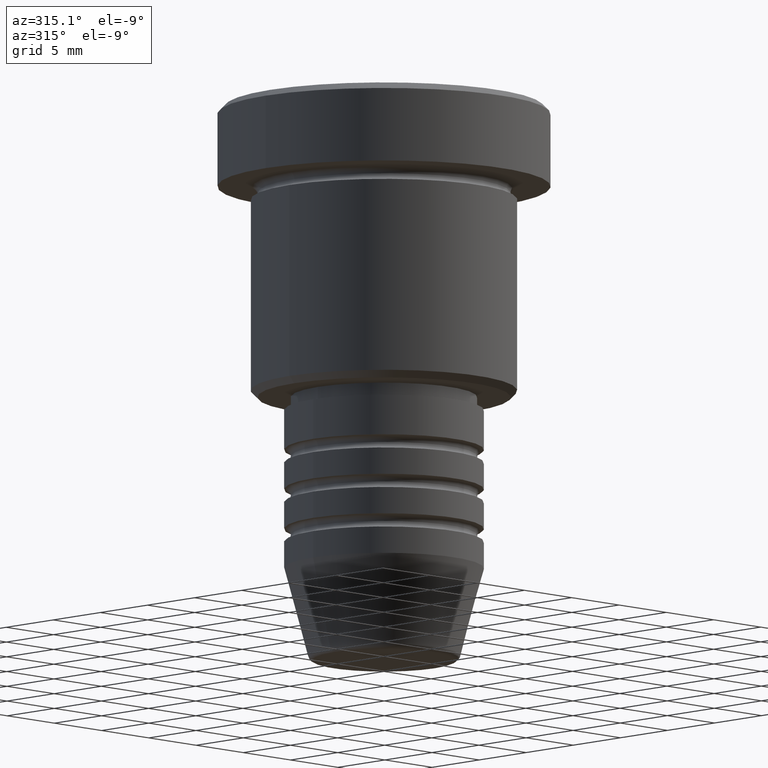
[diagram: clean part render]
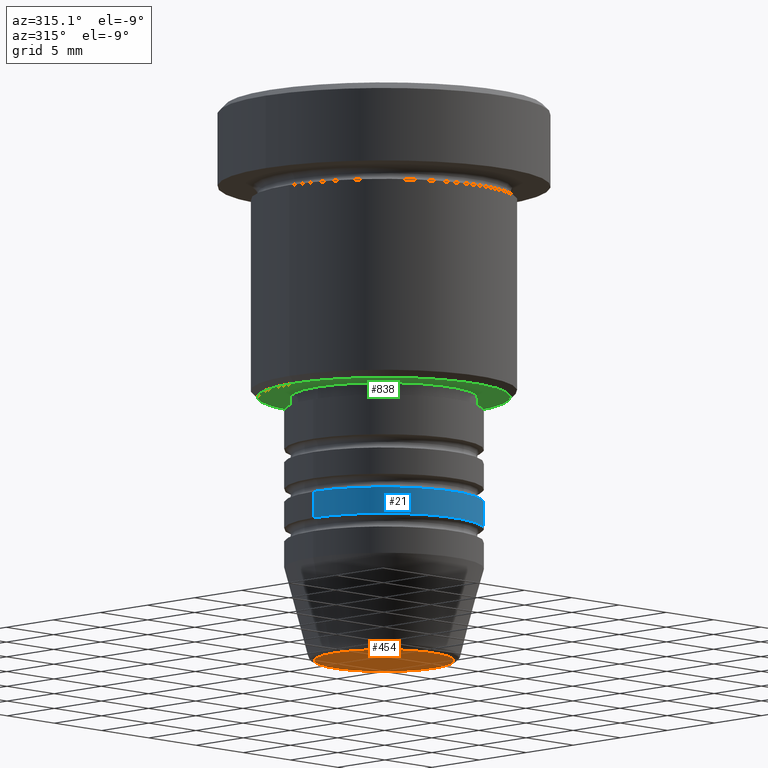
[diagram: same view with three faces highlighted in distinct colors, each labeled with its STEP entity id]
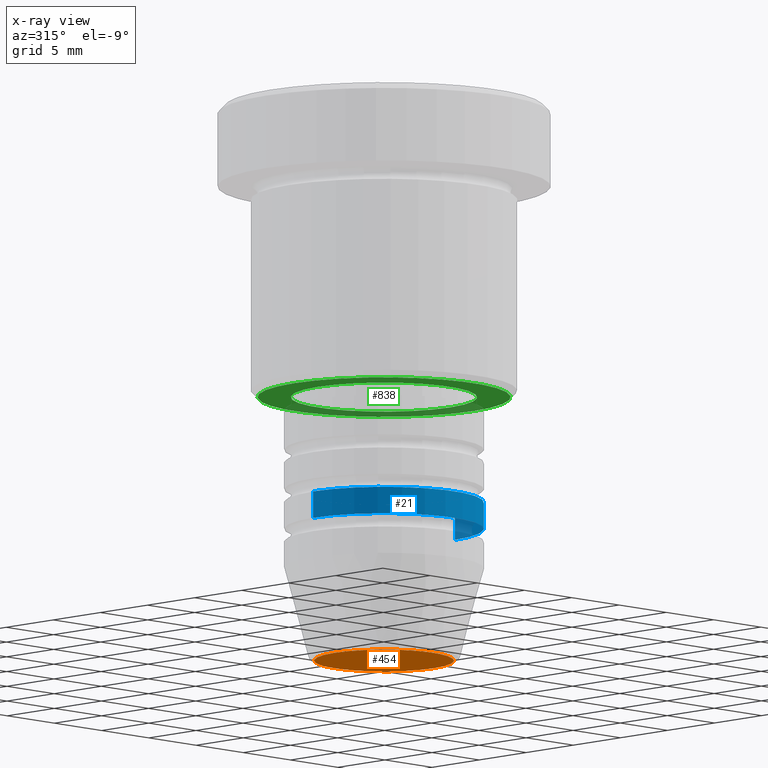
[diagram: x-ray of the same camera — body ghosted, the three highlighted faces saturated]
A machine part, auxiliary view with three faces highlighted in distinct colors.
The next image is the same camera in x-ray (body ghosted, the three faces saturated) — at least one of them is partly hidden behind the body in this view.
Their STEP definitions:

[orange] entity #454 — the highlighted planar face has unit normal (0, -0, 1).
#114 = AXIS2_PLACEMENT_3D ( 'NONE', #643, #422, #159 ) ;
#159 = DIRECTION ( 'NONE',  ( 1.000000000000000000, 0.000000000000000000, 0.000000000000000000 ) ) ;
#185 = CARTESIAN_POINT ( 'NONE',  ( 0.000000000000000000, 0.000000000000000000, -41.99999999999999289 ) ) ;
#422 = DIRECTION ( 'NONE',  ( 0.000000000000000000, 0.000000000000000000, -1.000000000000000000 ) ) ;
#454 = ADVANCED_FACE ( 'NONE', ( #817 ), #715, .F. ) ;
#494 = CIRCLE ( 'NONE', #531, 5.240692158992656502 ) ;
#498 = DIRECTION ( 'NONE',  ( 1.000000000000000000, 0.000000000000000000, 0.000000000000000000 ) ) ;
#531 = AXIS2_PLACEMENT_3D ( 'NONE', #1077, #603, #498 ) ;
#586 = CARTESIAN_POINT ( 'NONE',  ( 5.240692158992656502, 0.000000000000000000, -41.99999999999999289 ) ) ;
#595 = CIRCLE ( 'NONE', #114, 5.240692158992656502 ) ;
#597 = EDGE_CURVE ( 'NONE', #874, #901, #494, .T. ) ;
#603 = DIRECTION ( 'NONE',  ( 0.000000000000000000, 0.000000000000000000, -1.000000000000000000 ) ) ;
#643 = CARTESIAN_POINT ( 'NONE',  ( 0.000000000000000000, 0.000000000000000000, -41.99999999999999289 ) ) ;
#654 = CARTESIAN_POINT ( 'NONE',  ( -5.240692158992656502, 6.713726370671657473E-16, -41.99999999999999289 ) ) ;
#702 = AXIS2_PLACEMENT_3D ( 'NONE', #185, #1174, #802 ) ;
#715 = PLANE ( 'NONE',  #702 ) ;
#732 = ORIENTED_EDGE ( 'NONE', *, *, #597, .T. ) ;
#802 = DIRECTION ( 'NONE',  ( 1.000000000000000000, 0.000000000000000000, 0.000000000000000000 ) ) ;
#817 = FACE_OUTER_BOUND ( 'NONE', #1180, .T. ) ;
#874 = VERTEX_POINT ( 'NONE', #586 ) ;
#901 = VERTEX_POINT ( 'NONE', #654 ) ;
#1006 = EDGE_CURVE ( 'NONE', #901, #874, #595, .T. ) ;
#1035 = ORIENTED_EDGE ( 'NONE', *, *, #1006, .T. ) ;
#1077 = CARTESIAN_POINT ( 'NONE',  ( 0.000000000000000000, 0.000000000000000000, -41.99999999999999289 ) ) ;
#1174 = DIRECTION ( 'NONE',  ( 0.000000000000000000, -0.000000000000000000, 1.000000000000000000 ) ) ;
#1180 = EDGE_LOOP ( 'NONE', ( #732, #1035 ) ) ;

[blue] entity #21 — the highlighted cylindrical surface (partial cylindrical patch) has radius 7.5 mm, axis along (-0, -0, 1).
#21 = ADVANCED_FACE ( 'NONE', ( #484 ), #755, .T. ) ;
#43 = LINE ( 'NONE', #48, #240 ) ;
#48 = CARTESIAN_POINT ( 'NONE',  ( -7.500000000000000000, 9.184850993605147944E-16, 0.000000000000000000 ) ) ;
#55 = VERTEX_POINT ( 'NONE', #1010 ) ;
#84 = DIRECTION ( 'NONE',  ( 1.000000000000000000, 0.000000000000000000, 0.000000000000000000 ) ) ;
#131 = CARTESIAN_POINT ( 'NONE',  ( -7.500000000000000000, 9.184850993605147944E-16, -29.99999999999998224 ) ) ;
#207 = CIRCLE ( 'NONE', #653, 7.500000000000000000 ) ;
#236 = AXIS2_PLACEMENT_3D ( 'NONE', #581, #938, #473 ) ;
#240 = VECTOR ( 'NONE', #696, 1000.000000000000000 ) ;
#243 = DIRECTION ( 'NONE',  ( 1.000000000000000000, 0.000000000000000000, 0.000000000000000000 ) ) ;
#294 = CARTESIAN_POINT ( 'NONE',  ( 7.500000000000000000, 0.000000000000000000, -31.99999999999997868 ) ) ;
#384 = ORIENTED_EDGE ( 'NONE', *, *, #602, .T. ) ;
#409 = EDGE_CURVE ( 'NONE', #1135, #747, #850, .T. ) ;
#473 = DIRECTION ( 'NONE',  ( 1.000000000000000000, 0.000000000000000000, 0.000000000000000000 ) ) ;
#484 = FACE_OUTER_BOUND ( 'NONE', #730, .T. ) ;
#512 = VECTOR ( 'NONE', #1137, 1000.000000000000000 ) ;
#518 = DIRECTION ( 'NONE',  ( -0.000000000000000000, -0.000000000000000000, 1.000000000000000000 ) ) ;
#519 = ORIENTED_EDGE ( 'NONE', *, *, #1049, .F. ) ;
#555 = CARTESIAN_POINT ( 'NONE',  ( -7.500000000000000000, 9.184850993605147944E-16, -31.99999999999997868 ) ) ;
#581 = CARTESIAN_POINT ( 'NONE',  ( 0.000000000000000000, 0.000000000000000000, 0.000000000000000000 ) ) ;
#599 = LINE ( 'NONE', #1033, #512 ) ;
#602 = EDGE_CURVE ( 'NONE', #747, #55, #599, .T. ) ;
#624 = VERTEX_POINT ( 'NONE', #131 ) ;
#627 = EDGE_CURVE ( 'NONE', #1135, #624, #43, .T. ) ;
#653 = AXIS2_PLACEMENT_3D ( 'NONE', #1143, #673, #84 ) ;
#673 = DIRECTION ( 'NONE',  ( -0.000000000000000000, -0.000000000000000000, 1.000000000000000000 ) ) ;
#696 = DIRECTION ( 'NONE',  ( -0.000000000000000000, -0.000000000000000000, 1.000000000000000000 ) ) ;
#730 = EDGE_LOOP ( 'NONE', ( #1024, #899, #384, #519 ) ) ;
#747 = VERTEX_POINT ( 'NONE', #294 ) ;
#755 = CYLINDRICAL_SURFACE ( 'NONE', #236, 7.500000000000000000 ) ;
#850 = CIRCLE ( 'NONE', #1168, 7.500000000000000000 ) ;
#899 = ORIENTED_EDGE ( 'NONE', *, *, #409, .T. ) ;
#938 = DIRECTION ( 'NONE',  ( -0.000000000000000000, -0.000000000000000000, 1.000000000000000000 ) ) ;
#1010 = CARTESIAN_POINT ( 'NONE',  ( 7.500000000000000000, 0.000000000000000000, -29.99999999999998224 ) ) ;
#1024 = ORIENTED_EDGE ( 'NONE', *, *, #627, .F. ) ;
#1033 = CARTESIAN_POINT ( 'NONE',  ( 7.500000000000000000, 0.000000000000000000, 0.000000000000000000 ) ) ;
#1049 = EDGE_CURVE ( 'NONE', #624, #55, #207, .T. ) ;
#1053 = CARTESIAN_POINT ( 'NONE',  ( 0.000000000000000000, 0.000000000000000000, -31.99999999999997868 ) ) ;
#1135 = VERTEX_POINT ( 'NONE', #555 ) ;
#1137 = DIRECTION ( 'NONE',  ( -0.000000000000000000, -0.000000000000000000, 1.000000000000000000 ) ) ;
#1143 = CARTESIAN_POINT ( 'NONE',  ( 0.000000000000000000, 0.000000000000000000, -29.99999999999998224 ) ) ;
#1168 = AXIS2_PLACEMENT_3D ( 'NONE', #1053, #518, #243 ) ;

[green] entity #838 — the highlighted planar face has unit normal (0, 0, -1).
#1 = DIRECTION ( 'NONE',  ( -1.000000000000000000, 0.000000000000000000, 0.000000000000000000 ) ) ;
#11 = DIRECTION ( 'NONE',  ( -1.000000000000000000, 0.000000000000000000, 0.000000000000000000 ) ) ;
#56 = CIRCLE ( 'NONE', #356, 9.499999999999991118 ) ;
#61 = CARTESIAN_POINT ( 'NONE',  ( 0.000000000000000000, 0.000000000000000000, -21.99999999999999645 ) ) ;
#69 = CARTESIAN_POINT ( 'NONE',  ( 0.000000000000000000, 10.00000000000000000, -21.99999999999999645 ) ) ;
#79 = EDGE_CURVE ( 'NONE', #706, #276, #56, .T. ) ;
#91 = EDGE_CURVE ( 'NONE', #276, #706, #1016, .T. ) ;
#94 = ORIENTED_EDGE ( 'NONE', *, *, #847, .T. ) ;
#156 = CARTESIAN_POINT ( 'NONE',  ( 6.999999999999999112, 0.000000000000000000, -21.99999999999999645 ) ) ;
#186 = DIRECTION ( 'NONE',  ( -1.000000000000000000, 0.000000000000000000, -0.000000000000000000 ) ) ;
#199 = CARTESIAN_POINT ( 'NONE',  ( 0.000000000000000000, 0.000000000000000000, -21.99999999999999645 ) ) ;
#250 = CARTESIAN_POINT ( 'NONE',  ( -6.999999999999999112, 8.572527594031472204E-16, -21.99999999999999645 ) ) ;
#256 = CIRCLE ( 'NONE', #932, 6.999999999999999112 ) ;
#258 = DIRECTION ( 'NONE',  ( 0.000000000000000000, 0.000000000000000000, -1.000000000000000000 ) ) ;
#276 = VERTEX_POINT ( 'NONE', #353 ) ;
#290 = DIRECTION ( 'NONE',  ( 0.000000000000000000, 0.000000000000000000, -1.000000000000000000 ) ) ;
#344 = DIRECTION ( 'NONE',  ( 1.000000000000000000, 0.000000000000000000, 0.000000000000000000 ) ) ;
#353 = CARTESIAN_POINT ( 'NONE',  ( 9.499999999999991118, 0.000000000000000000, -21.99999999999999645 ) ) ;
#356 = AXIS2_PLACEMENT_3D ( 'NONE', #199, #290, #11 ) ;
#361 = AXIS2_PLACEMENT_3D ( 'NONE', #69, #258, #186 ) ;
#394 = AXIS2_PLACEMENT_3D ( 'NONE', #61, #511, #344 ) ;
#430 = VERTEX_POINT ( 'NONE', #156 ) ;
#451 = PLANE ( 'NONE',  #361 ) ;
#511 = DIRECTION ( 'NONE',  ( -0.000000000000000000, -0.000000000000000000, 1.000000000000000000 ) ) ;
#528 = VERTEX_POINT ( 'NONE', #250 ) ;
#529 = CARTESIAN_POINT ( 'NONE',  ( 0.000000000000000000, 0.000000000000000000, -21.99999999999999645 ) ) ;
#539 = DIRECTION ( 'NONE',  ( -0.000000000000000000, -0.000000000000000000, 1.000000000000000000 ) ) ;
#554 = AXIS2_PLACEMENT_3D ( 'NONE', #853, #923, #1 ) ;
#584 = ORIENTED_EDGE ( 'NONE', *, *, #79, .T. ) ;
#634 = EDGE_LOOP ( 'NONE', ( #639, #94 ) ) ;
#639 = ORIENTED_EDGE ( 'NONE', *, *, #1008, .T. ) ;
#706 = VERTEX_POINT ( 'NONE', #1122 ) ;
#712 = DIRECTION ( 'NONE',  ( 1.000000000000000000, 0.000000000000000000, 0.000000000000000000 ) ) ;
#803 = FACE_OUTER_BOUND ( 'NONE', #895, .T. ) ;
#838 = ADVANCED_FACE ( 'NONE', ( #803, #1069 ), #451, .T. ) ;
#847 = EDGE_CURVE ( 'NONE', #528, #430, #1032, .T. ) ;
#853 = CARTESIAN_POINT ( 'NONE',  ( 0.000000000000000000, 0.000000000000000000, -21.99999999999999645 ) ) ;
#861 = ORIENTED_EDGE ( 'NONE', *, *, #91, .T. ) ;
#895 = EDGE_LOOP ( 'NONE', ( #861, #584 ) ) ;
#923 = DIRECTION ( 'NONE',  ( 0.000000000000000000, 0.000000000000000000, -1.000000000000000000 ) ) ;
#932 = AXIS2_PLACEMENT_3D ( 'NONE', #529, #539, #712 ) ;
#1008 = EDGE_CURVE ( 'NONE', #430, #528, #256, .T. ) ;
#1016 = CIRCLE ( 'NONE', #554, 9.499999999999991118 ) ;
#1032 = CIRCLE ( 'NONE', #394, 6.999999999999999112 ) ;
#1069 = FACE_BOUND ( 'NONE', #634, .T. ) ;
#1122 = CARTESIAN_POINT ( 'NONE',  ( -9.499999999999991118, 1.194030629168668878E-15, -21.99999999999999645 ) ) ;